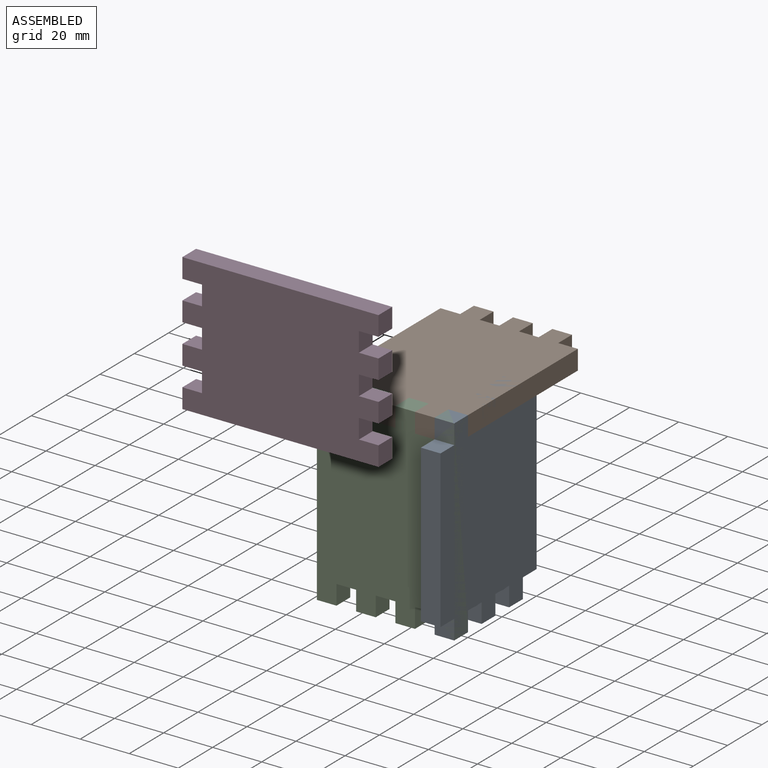
[diagram: assembled view]
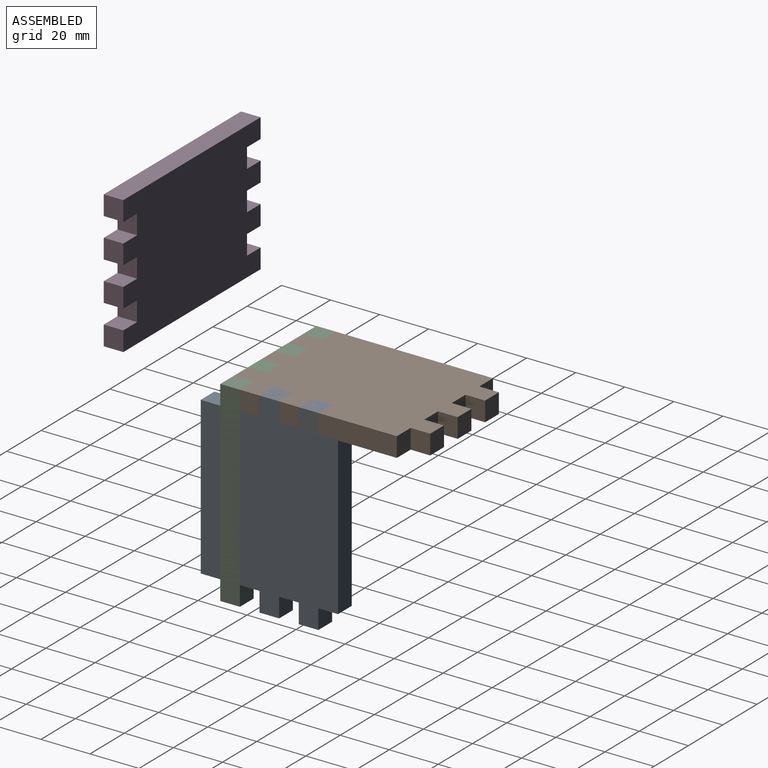
[diagram: assembled view, second angle]
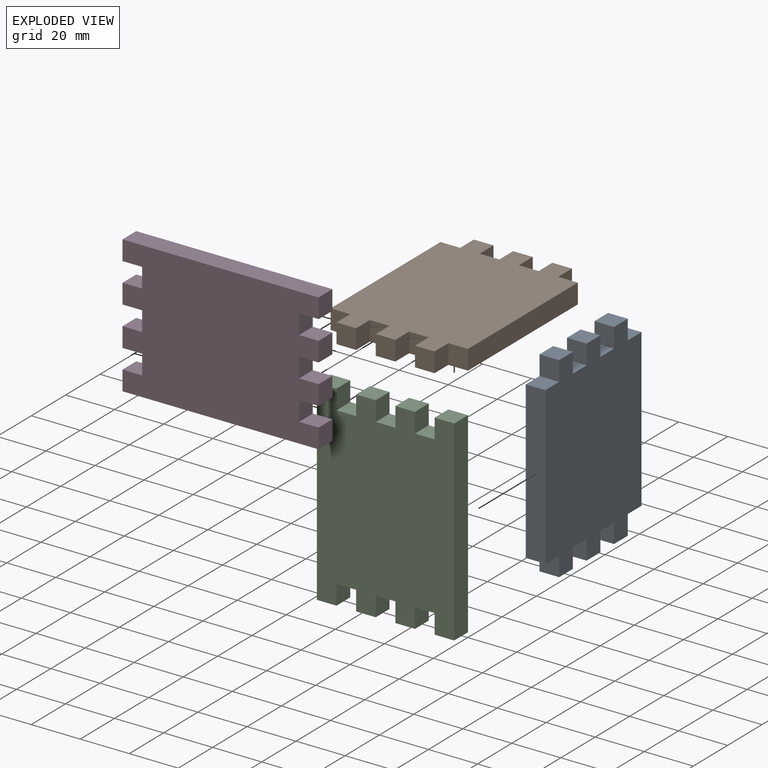
[diagram: exploded view]
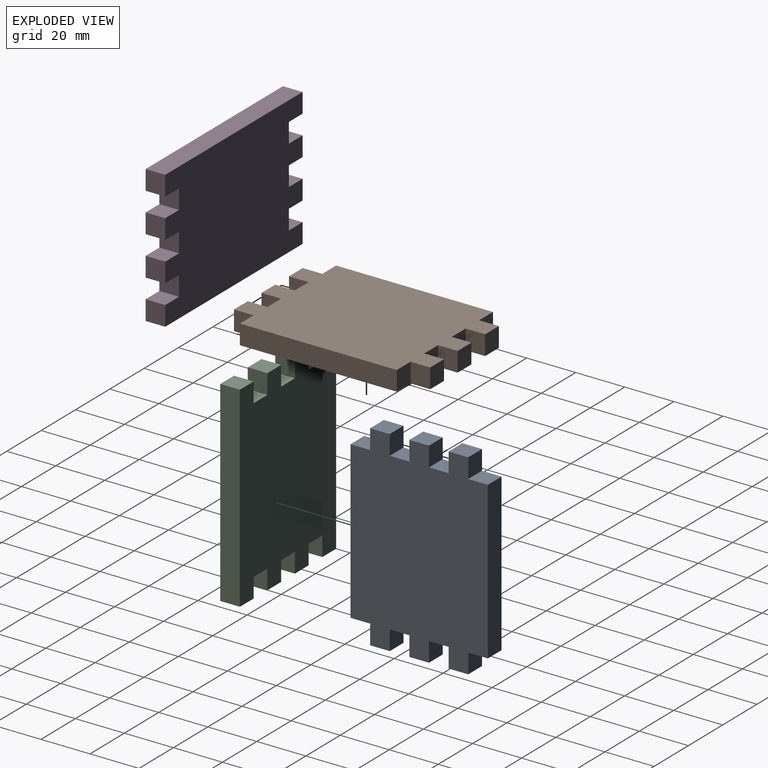
[diagram: exploded view, second angle]
ASSEMBLY  parts=4 mates=2
PART A: 30 faces, bbox 80x8x56 mm
  f0: plane 64x8mm, normal (0,0,-1), area 512mm2, adj f1,f27,f28,f29
  f1: plane 8x8mm, normal (1,0,0), area 64mm2, adj f0,f2,f28,f29
  f2: plane 8x8mm, normal (0,0,-1), area 64mm2, adj f1,f3,f28,f29
  f3: plane 8x8mm, normal (1,0,0), area 64mm2, adj f2,f4,f28,f29
  f4: plane 8x8mm, normal (0,0,1), area 64mm2, adj f3,f5,f28,f29
  f5: plane 8x8mm, normal (1,0,0), area 64mm2, adj f4,f6,f28,f29
  f6: plane 8x8mm, normal (0,0,-1), area 64mm2, adj f5,f7,f28,f29
  f7: plane 8x8mm, normal (1,0,0), area 64mm2, adj f6,f8,f28,f29
  f8: plane 8x8mm, normal (0,0,1), area 64mm2, adj f7,f9,f28,f29
  f9: plane 8x8mm, normal (1,0,0), area 64mm2, adj f8,f10,f28,f29
  f10: plane 8x8mm, normal (0,0,-1), area 64mm2, adj f9,f11,f28,f29
  f11: plane 8x8mm, normal (1,0,0), area 64mm2, adj f10,f12,f28,f29
  f12: plane 8x8mm, normal (0,0,1), area 64mm2, adj f11,f13,f28,f29
  f13: plane 8x8mm, normal (1,0,0), area 64mm2, adj f12,f14,f28,f29
  f14: plane 64x8mm, normal (0,0,1), area 512mm2, adj f13,f15,f28,f29
  f15: plane 8x8mm, normal (-1,0,0), area 64mm2, adj f14,f16,f28,f29
  f16: plane 8x8mm, normal (0,0,1), area 64mm2, adj f15,f17,f28,f29
  f17: plane 8x8mm, normal (-1,0,0), area 64mm2, adj f16,f18,f28,f29
  f18: plane 8x8mm, normal (0,0,-1), area 64mm2, adj f17,f19,f28,f29
  f19: plane 8x8mm, normal (-1,0,0), area 64mm2, adj f18,f20,f28,f29
  f20: plane 8x8mm, normal (0,0,1), area 64mm2, adj f19,f21,f28,f29
  f21: plane 8x8mm, normal (-1,0,0), area 64mm2, adj f20,f22,f28,f29
  f22: plane 8x8mm, normal (0,0,-1), area 64mm2, adj f21,f23,f28,f29
  f23: plane 8x8mm, normal (-1,0,0), area 64mm2, adj f22,f24,f28,f29
  f24: plane 8x8mm, normal (0,0,1), area 64mm2, adj f23,f25,f28,f29
  f25: plane 8x8mm, normal (-1,0,0), area 64mm2, adj f24,f26,f28,f29
  f26: plane 8x8mm, normal (0,0,-1), area 64mm2, adj f25,f27,f28,f29
  f27: plane 8x8mm, normal (-1,0,0), area 64mm2, adj f0,f26,f28,f29
  f28: plane 80x56mm, normal (0,-1,0), area 3968mm2, adj f0,f1,f2,f3,f4,f5,f6,f7
  f29: plane 80x56mm, normal (0,1,0), area 3968mm2, adj f0,f1,f2,f3,f4,f5,f6,f7
PART B: same geometry as A
PART C: 30 faces, bbox 80x8x56 mm
  f0: plane 80x8mm, normal (0,0,-1), area 640mm2, adj f1,f27,f28,f29
  f1: plane 8x8mm, normal (1,0,0), area 64mm2, adj f0,f2,f28,f29
  f2: plane 8x8mm, normal (0,0,1), area 64mm2, adj f1,f3,f28,f29
  f3: plane 8x8mm, normal (1,0,0), area 64mm2, adj f2,f4,f28,f29
  f4: plane 8x8mm, normal (0,0,-1), area 64mm2, adj f3,f5,f28,f29
  f5: plane 8x8mm, normal (1,0,0), area 64mm2, adj f4,f6,f28,f29
  f6: plane 8x8mm, normal (0,0,1), area 64mm2, adj f5,f7,f28,f29
  f7: plane 8x8mm, normal (1,0,0), area 64mm2, adj f6,f8,f28,f29
  f8: plane 8x8mm, normal (0,0,-1), area 64mm2, adj f7,f9,f28,f29
  f9: plane 8x8mm, normal (1,0,0), area 64mm2, adj f8,f10,f28,f29
  f10: plane 8x8mm, normal (0,0,1), area 64mm2, adj f9,f11,f28,f29
  f11: plane 8x8mm, normal (1,0,0), area 64mm2, adj f10,f12,f28,f29
  f12: plane 8x8mm, normal (0,0,-1), area 64mm2, adj f11,f13,f28,f29
  f13: plane 8x8mm, normal (1,0,0), area 64mm2, adj f12,f14,f28,f29
  f14: plane 80x8mm, normal (0,0,1), area 640mm2, adj f13,f15,f28,f29
  f15: plane 8x8mm, normal (-1,0,0), area 64mm2, adj f14,f16,f28,f29
  f16: plane 8x8mm, normal (0,0,-1), area 64mm2, adj f15,f17,f28,f29
  f17: plane 8x8mm, normal (-1,0,0), area 64mm2, adj f16,f18,f28,f29
  f18: plane 8x8mm, normal (0,0,1), area 64mm2, adj f17,f19,f28,f29
  f19: plane 8x8mm, normal (-1,0,0), area 64mm2, adj f18,f20,f28,f29
  f20: plane 8x8mm, normal (0,0,-1), area 64mm2, adj f19,f21,f28,f29
  f21: plane 8x8mm, normal (-1,0,0), area 64mm2, adj f20,f22,f28,f29
  f22: plane 8x8mm, normal (0,0,1), area 64mm2, adj f21,f23,f28,f29
  f23: plane 8x8mm, normal (-1,0,0), area 64mm2, adj f22,f24,f28,f29
  f24: plane 8x8mm, normal (0,0,-1), area 64mm2, adj f23,f25,f28,f29
  f25: plane 8x8mm, normal (-1,0,0), area 64mm2, adj f24,f26,f28,f29
  f26: plane 8x8mm, normal (0,0,1), area 64mm2, adj f25,f27,f28,f29
  f27: plane 8x8mm, normal (-1,0,0), area 64mm2, adj f0,f26,f28,f29
  f28: plane 80x56mm, normal (0,-1,0), area 4096mm2, adj f0,f1,f2,f3,f4,f5,f6,f7
  f29: plane 80x56mm, normal (0,1,0), area 4096mm2, adj f0,f1,f2,f3,f4,f5,f6,f7
PART D: same geometry as C
PLACE A rot(axis=(-0.58,0.58,0.58),120deg) t=(73.42,42.12,4.83)mm
PLACE B rot(axis=(-0.58,0.58,-0.58),120deg) t=(25.42,122.12,4.83)mm
PLACE C rot(axis=(0,-1,0),90deg) t=(81.42,58.12,-67.17)mm
PLACE D t=(3.04,11.7,14.92)mm
MATE revolute B.f28 <-> C.f1  axis (0,0,1) through (73.42,50.12,12.83)mm
MATE fastened A.f2 <-> C.f28  axis (0,1,0) through (73.42,50.12,-67.17)mm
